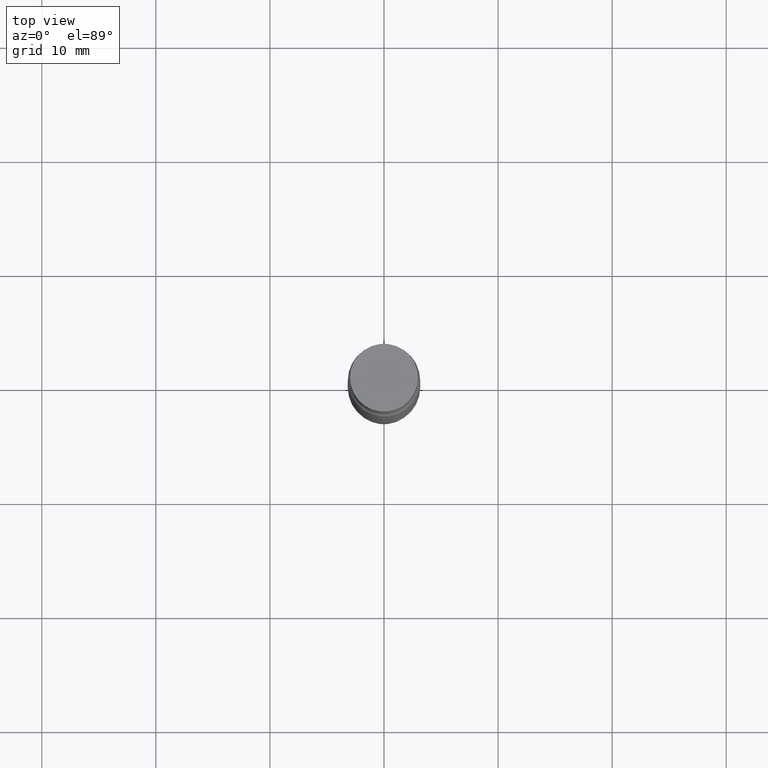
[diagram: clean part render]
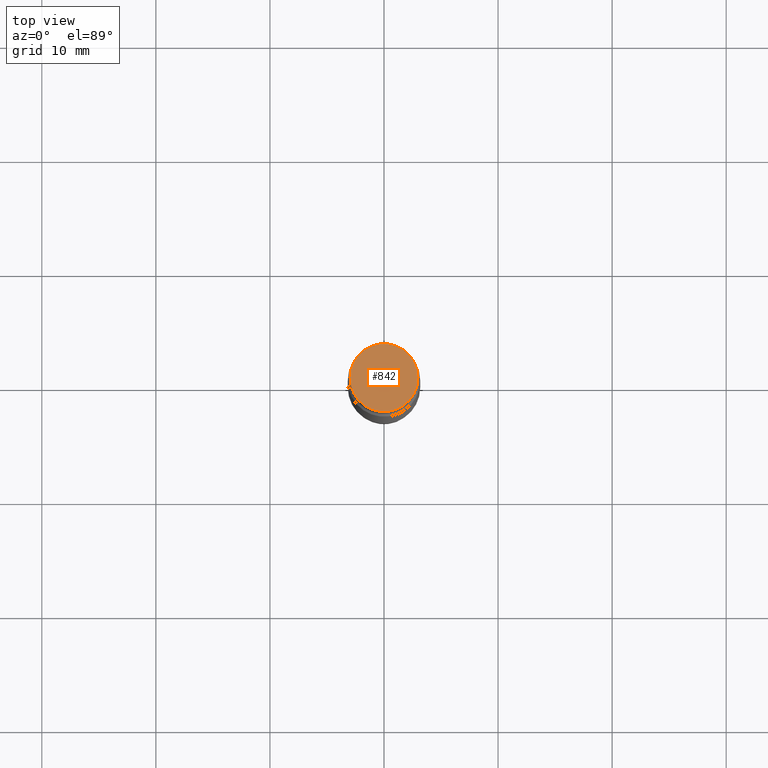
[diagram: same view with one face highlighted and labeled with its STEP entity id]
A machine part, top view. The second image highlights one B-rep face of the part: STEP entity #842.
In plain terms, the highlighted planar face has unit normal (-0, -0, -1).
Its self-contained STEP definition (entity closure, byte-faithful):
#49 = AXIS2_PLACEMENT_3D ( 'NONE', #288, #500, #805 ) ;
#107 = DIRECTION ( 'NONE',  ( 1.000000000000000000, -6.982962677686266711E-15, 0.000000000000000000 ) ) ;
#108 = AXIS2_PLACEMENT_3D ( 'NONE', #246, #243, #166 ) ;
#118 = PLANE ( 'NONE',  #49 ) ;
#166 = DIRECTION ( 'NONE',  ( 1.000000000000000000, -6.982962677686266711E-15, 0.000000000000000000 ) ) ;
#187 = EDGE_CURVE ( 'NONE', #717, #381, #819, .T. ) ;
#190 = CARTESIAN_POINT ( 'NONE',  ( 6.113672015462842613E-29, 4.046951474745467748E-19, 5.463695987328526437E-16 ) ) ;
#243 = DIRECTION ( 'NONE',  ( 2.445468806185136597E-29, 3.491805094961124077E-15, 1.000000000000000000 ) ) ;
#246 = CARTESIAN_POINT ( 'NONE',  ( 6.113672015462842613E-29, 4.046951474745467748E-19, 5.463695987328526437E-16 ) ) ;
#288 = CARTESIAN_POINT ( 'NONE',  ( 6.154742442311056095E-29, 5.921988397764257759E-17, 5.463695987328526437E-16 ) ) ;
#362 = EDGE_LOOP ( 'NONE', ( #958, #401 ) ) ;
#381 = VERTEX_POINT ( 'NONE', #481 ) ;
#401 = ORIENTED_EDGE ( 'NONE', *, *, #695, .T. ) ;
#481 = CARTESIAN_POINT ( 'NONE',  ( -0.1171999999999999986, -6.849621325398194571E-17, 5.463695987328557991E-16 ) ) ;
#500 = DIRECTION ( 'NONE',  ( -2.438088387897959208E-29, -3.491805094961123683E-15, -1.000000000000000000 ) ) ;
#604 = AXIS2_PLACEMENT_3D ( 'NONE', #190, #847, #107 ) ;
#659 = FACE_OUTER_BOUND ( 'NONE', #362, .T. ) ;
#695 = EDGE_CURVE ( 'NONE', #381, #717, #965, .T. ) ;
#717 = VERTEX_POINT ( 'NONE', #778 ) ;
#778 = CARTESIAN_POINT ( 'NONE',  ( 0.1171999999999999986, -8.179985306773559567E-16, 5.463695987328526437E-16 ) ) ;
#805 = DIRECTION ( 'NONE',  ( 1.000000000000000000, -6.982962677686265922E-15, 2.260776888683160832E-33 ) ) ;
#819 = CIRCLE ( 'NONE', #108, 0.1171999999999999986 ) ;
#842 = ADVANCED_FACE ( 'NONE', ( #659 ), #118, .F. ) ;
#847 = DIRECTION ( 'NONE',  ( 2.445468806185136597E-29, 3.491805094961124077E-15, 1.000000000000000000 ) ) ;
#958 = ORIENTED_EDGE ( 'NONE', *, *, #187, .T. ) ;
#965 = CIRCLE ( 'NONE', #604, 0.1171999999999999986 ) ;